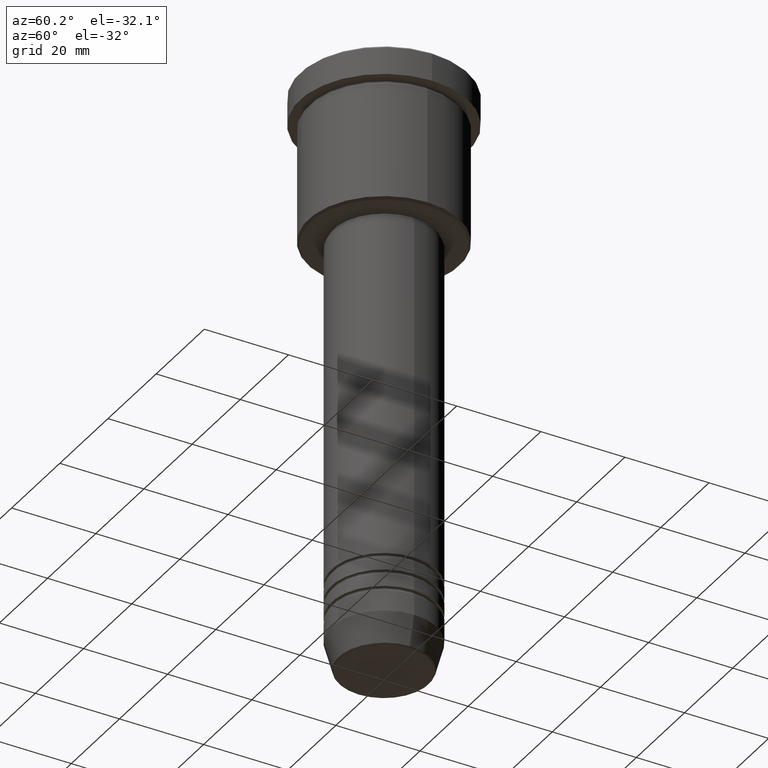
[diagram: clean part render]
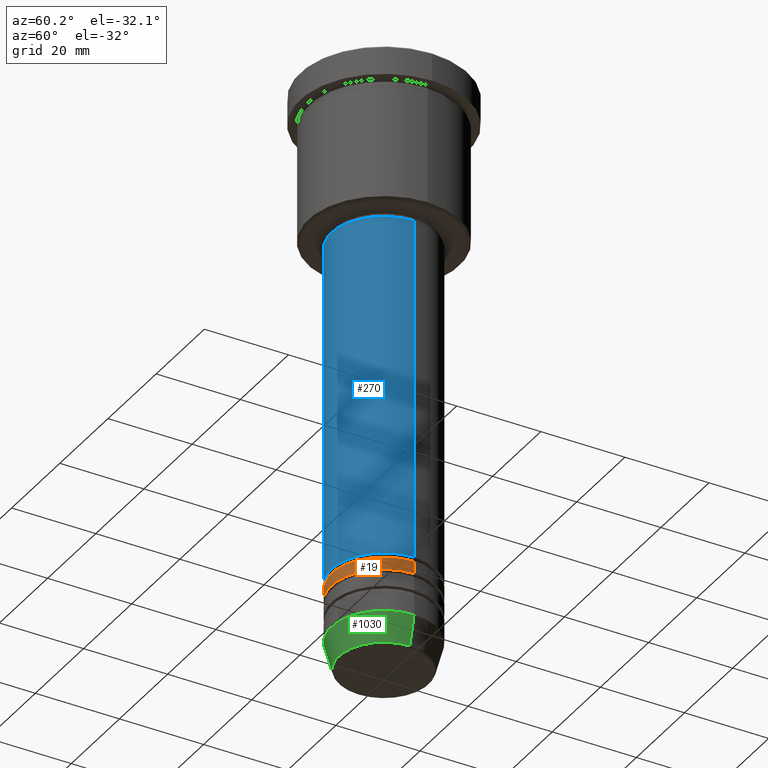
[diagram: same view with three faces highlighted in distinct colors, each labeled with its STEP entity id]
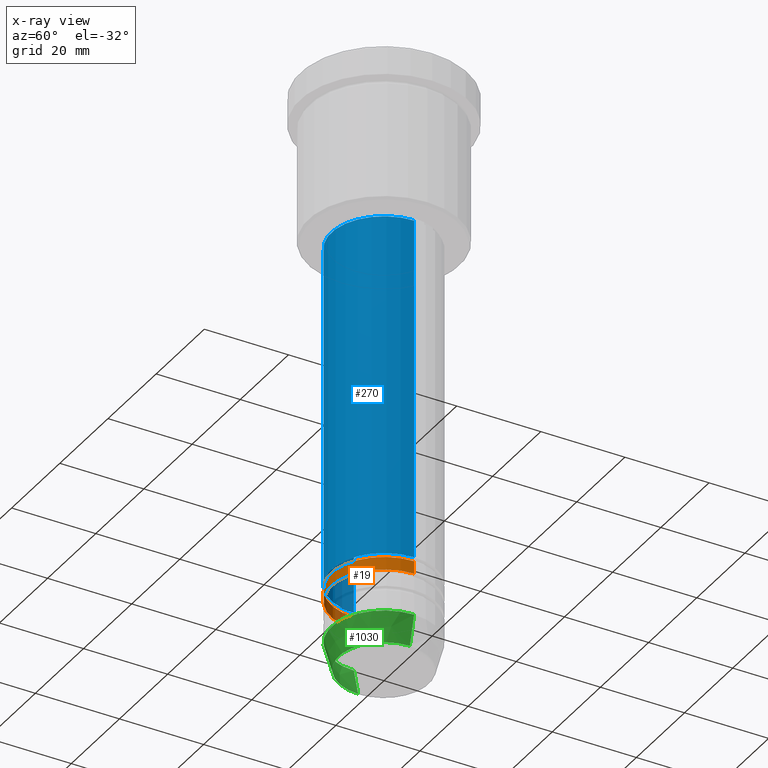
[diagram: x-ray of the same camera — body ghosted, the three highlighted faces saturated]
A machine part, auxiliary view with three faces highlighted in distinct colors.
The next image is the same camera in x-ray (body ghosted, the three faces saturated) — at least one of them is partly hidden behind the body in this view.
Their STEP definitions:

[orange] entity #19 — the highlighted cylindrical surface (partial cylindrical patch) has radius 12.5 mm, axis along (-0, -0, 1).
#19 = ADVANCED_FACE ( 'NONE', ( #937 ), #109, .T. ) ;
#29 = CARTESIAN_POINT ( 'NONE',  ( 12.50000000000000178, 0.000000000000000000, 0.000000000000000000 ) ) ;
#46 = LINE ( 'NONE', #29, #1169 ) ;
#64 = EDGE_CURVE ( 'NONE', #519, #653, #940, .T. ) ;
#94 = DIRECTION ( 'NONE',  ( 1.000000000000000000, 0.000000000000000000, 0.000000000000000000 ) ) ;
#95 = DIRECTION ( 'NONE',  ( 1.000000000000000000, 0.000000000000000000, 0.000000000000000000 ) ) ;
#98 = CARTESIAN_POINT ( 'NONE',  ( -12.50000000000000000, 1.530808498934191719E-15, -120.0000000000000000 ) ) ;
#107 = CARTESIAN_POINT ( 'NONE',  ( 12.50000000000000355, 0.000000000000000000, -123.0000000000000000 ) ) ;
#109 = CYLINDRICAL_SURFACE ( 'NONE', #283, 12.50000000000000178 ) ;
#111 = EDGE_CURVE ( 'NONE', #837, #653, #46, .T. ) ;
#192 = ORIENTED_EDGE ( 'NONE', *, *, #746, .T. ) ;
#197 = CARTESIAN_POINT ( 'NONE',  ( -12.50000000000000533, 1.530808498934192113E-15, -123.0000000000000000 ) ) ;
#208 = AXIS2_PLACEMENT_3D ( 'NONE', #459, #737, #742 ) ;
#283 = AXIS2_PLACEMENT_3D ( 'NONE', #658, #393, #95 ) ;
#385 = DIRECTION ( 'NONE',  ( -0.000000000000000000, -0.000000000000000000, 1.000000000000000000 ) ) ;
#393 = DIRECTION ( 'NONE',  ( -0.000000000000000000, -0.000000000000000000, 1.000000000000000000 ) ) ;
#459 = CARTESIAN_POINT ( 'NONE',  ( 0.000000000000000000, 0.000000000000000000, -120.0000000000000000 ) ) ;
#480 = CARTESIAN_POINT ( 'NONE',  ( 0.000000000000000000, 0.000000000000000000, -123.0000000000000000 ) ) ;
#487 = CARTESIAN_POINT ( 'NONE',  ( -12.50000000000000178, 1.530808498934191719E-15, 0.000000000000000000 ) ) ;
#519 = VERTEX_POINT ( 'NONE', #98 ) ;
#552 = AXIS2_PLACEMENT_3D ( 'NONE', #480, #385, #94 ) ;
#574 = LINE ( 'NONE', #487, #743 ) ;
#606 = CARTESIAN_POINT ( 'NONE',  ( 12.50000000000000000, 0.000000000000000000, -120.0000000000000000 ) ) ;
#653 = VERTEX_POINT ( 'NONE', #606 ) ;
#658 = CARTESIAN_POINT ( 'NONE',  ( 0.000000000000000000, 0.000000000000000000, 0.000000000000000000 ) ) ;
#659 = ORIENTED_EDGE ( 'NONE', *, *, #111, .T. ) ;
#668 = CIRCLE ( 'NONE', #552, 12.50000000000000355 ) ;
#699 = ORIENTED_EDGE ( 'NONE', *, *, #64, .F. ) ;
#737 = DIRECTION ( 'NONE',  ( -0.000000000000000000, -0.000000000000000000, 1.000000000000000000 ) ) ;
#742 = DIRECTION ( 'NONE',  ( 1.000000000000000000, 0.000000000000000000, 0.000000000000000000 ) ) ;
#743 = VECTOR ( 'NONE', #1089, 1000.000000000000000 ) ;
#746 = EDGE_CURVE ( 'NONE', #749, #837, #668, .T. ) ;
#749 = VERTEX_POINT ( 'NONE', #197 ) ;
#784 = DIRECTION ( 'NONE',  ( -0.000000000000000000, -0.000000000000000000, 1.000000000000000000 ) ) ;
#787 = EDGE_CURVE ( 'NONE', #749, #519, #574, .T. ) ;
#837 = VERTEX_POINT ( 'NONE', #107 ) ;
#937 = FACE_OUTER_BOUND ( 'NONE', #1128, .T. ) ;
#940 = CIRCLE ( 'NONE', #208, 12.50000000000000000 ) ;
#1089 = DIRECTION ( 'NONE',  ( -0.000000000000000000, -0.000000000000000000, 1.000000000000000000 ) ) ;
#1128 = EDGE_LOOP ( 'NONE', ( #1162, #192, #659, #699 ) ) ;
#1162 = ORIENTED_EDGE ( 'NONE', *, *, #787, .F. ) ;
#1169 = VECTOR ( 'NONE', #784, 1000.000000000000000 ) ;

[blue] entity #270 — the highlighted cylindrical surface (partial cylindrical patch) has radius 12.5 mm, axis along (-0, -0, 1).
#23 = CARTESIAN_POINT ( 'NONE',  ( 12.50000000000000000, 0.000000000000000000, 0.000000000000000000 ) ) ;
#31 = VECTOR ( 'NONE', #309, 1000.000000000000000 ) ;
#32 = AXIS2_PLACEMENT_3D ( 'NONE', #1143, #165, #1155 ) ;
#68 = DIRECTION ( 'NONE',  ( -0.000000000000000000, -0.000000000000000000, 1.000000000000000000 ) ) ;
#120 = CARTESIAN_POINT ( 'NONE',  ( 12.50000000000000000, 0.000000000000000000, -37.00000000000002842 ) ) ;
#132 = DIRECTION ( 'NONE',  ( -0.000000000000000000, -0.000000000000000000, 1.000000000000000000 ) ) ;
#165 = DIRECTION ( 'NONE',  ( -0.000000000000000000, -0.000000000000000000, 1.000000000000000000 ) ) ;
#167 = EDGE_CURVE ( 'NONE', #691, #365, #221, .T. ) ;
#193 = EDGE_CURVE ( 'NONE', #365, #575, #771, .T. ) ;
#221 = LINE ( 'NONE', #511, #31 ) ;
#261 = CARTESIAN_POINT ( 'NONE',  ( -12.50000000000000000, 1.530808498934191521E-15, -119.0000000000000000 ) ) ;
#270 = ADVANCED_FACE ( 'NONE', ( #1062 ), #516, .T. ) ;
#290 = LINE ( 'NONE', #23, #960 ) ;
#309 = DIRECTION ( 'NONE',  ( -0.000000000000000000, -0.000000000000000000, 1.000000000000000000 ) ) ;
#365 = VERTEX_POINT ( 'NONE', #1160 ) ;
#423 = EDGE_CURVE ( 'NONE', #705, #575, #290, .T. ) ;
#429 = AXIS2_PLACEMENT_3D ( 'NONE', #928, #68, #454 ) ;
#454 = DIRECTION ( 'NONE',  ( 1.000000000000000000, 0.000000000000000000, 0.000000000000000000 ) ) ;
#511 = CARTESIAN_POINT ( 'NONE',  ( -12.50000000000000000, 1.530808498934191521E-15, 0.000000000000000000 ) ) ;
#516 = CYLINDRICAL_SURFACE ( 'NONE', #32, 12.50000000000000000 ) ;
#546 = CARTESIAN_POINT ( 'NONE',  ( 12.50000000000000000, 0.000000000000000000, -119.0000000000000000 ) ) ;
#575 = VERTEX_POINT ( 'NONE', #120 ) ;
#639 = EDGE_LOOP ( 'NONE', ( #1002, #1171, #763, #1075 ) ) ;
#688 = CARTESIAN_POINT ( 'NONE',  ( 0.000000000000000000, 0.000000000000000000, -37.00000000000002842 ) ) ;
#691 = VERTEX_POINT ( 'NONE', #261 ) ;
#705 = VERTEX_POINT ( 'NONE', #546 ) ;
#763 = ORIENTED_EDGE ( 'NONE', *, *, #423, .T. ) ;
#771 = CIRCLE ( 'NONE', #1034, 12.50000000000000000 ) ;
#879 = DIRECTION ( 'NONE',  ( 1.000000000000000000, 0.000000000000000000, 0.000000000000000000 ) ) ;
#928 = CARTESIAN_POINT ( 'NONE',  ( 0.000000000000000000, 0.000000000000000000, -119.0000000000000000 ) ) ;
#931 = DIRECTION ( 'NONE',  ( -0.000000000000000000, -0.000000000000000000, 1.000000000000000000 ) ) ;
#960 = VECTOR ( 'NONE', #931, 1000.000000000000000 ) ;
#968 = CIRCLE ( 'NONE', #429, 12.50000000000000000 ) ;
#1002 = ORIENTED_EDGE ( 'NONE', *, *, #167, .F. ) ;
#1034 = AXIS2_PLACEMENT_3D ( 'NONE', #688, #132, #879 ) ;
#1062 = FACE_OUTER_BOUND ( 'NONE', #639, .T. ) ;
#1075 = ORIENTED_EDGE ( 'NONE', *, *, #193, .F. ) ;
#1090 = EDGE_CURVE ( 'NONE', #691, #705, #968, .T. ) ;
#1143 = CARTESIAN_POINT ( 'NONE',  ( 0.000000000000000000, 0.000000000000000000, 0.000000000000000000 ) ) ;
#1155 = DIRECTION ( 'NONE',  ( 1.000000000000000000, 0.000000000000000000, 0.000000000000000000 ) ) ;
#1160 = CARTESIAN_POINT ( 'NONE',  ( -12.50000000000000000, 1.530808498934191521E-15, -37.00000000000002842 ) ) ;
#1171 = ORIENTED_EDGE ( 'NONE', *, *, #1090, .T. ) ;

[green] entity #1030 — the highlighted conical surface has half-angle 15 deg.
#53 = CARTESIAN_POINT ( 'NONE',  ( -10.72365507213718416, 1.422038742429750121E-15, -139.6294095225512990 ) ) ;
#57 = AXIS2_PLACEMENT_3D ( 'NONE', #1133, #228, #233 ) ;
#194 = CARTESIAN_POINT ( 'NONE',  ( 0.000000000000000000, 0.000000000000000000, -133.0000000000000000 ) ) ;
#228 = DIRECTION ( 'NONE',  ( -0.000000000000000000, -0.000000000000000000, 1.000000000000000000 ) ) ;
#233 = DIRECTION ( 'NONE',  ( 1.000000000000000000, 0.000000000000000000, 0.000000000000000000 ) ) ;
#289 = VERTEX_POINT ( 'NONE', #53 ) ;
#301 = CARTESIAN_POINT ( 'NONE',  ( -12.50000000000000000, 1.530808498934191521E-15, -133.0000000000000000 ) ) ;
#302 = VECTOR ( 'NONE', #414, 1000.000000000000000 ) ;
#331 = CIRCLE ( 'NONE', #57, 12.50000000000000000 ) ;
#333 = ORIENTED_EDGE ( 'NONE', *, *, #617, .T. ) ;
#360 = CARTESIAN_POINT ( 'NONE',  ( -12.50000000000000000, 1.530808498934191521E-15, -133.0000000000000000 ) ) ;
#379 = AXIS2_PLACEMENT_3D ( 'NONE', #610, #425, #443 ) ;
#399 = VERTEX_POINT ( 'NONE', #979 ) ;
#414 = DIRECTION ( 'NONE',  ( 0.2588190451025213501, 0.000000000000000000, 0.9659258262890680902 ) ) ;
#425 = DIRECTION ( 'NONE',  ( -0.000000000000000000, -0.000000000000000000, 1.000000000000000000 ) ) ;
#443 = DIRECTION ( 'NONE',  ( 1.000000000000000000, 0.000000000000000000, 0.000000000000000000 ) ) ;
#468 = ORIENTED_EDGE ( 'NONE', *, *, #998, .T. ) ;
#476 = CARTESIAN_POINT ( 'NONE',  ( 12.50000000000000000, 0.000000000000000000, -133.0000000000000000 ) ) ;
#492 = DIRECTION ( 'NONE',  ( -0.2588190451025213501, 3.169619151431772337E-17, 0.9659258262890680902 ) ) ;
#573 = EDGE_CURVE ( 'NONE', #289, #847, #950, .T. ) ;
#602 = CIRCLE ( 'NONE', #379, 10.72365507213718416 ) ;
#610 = CARTESIAN_POINT ( 'NONE',  ( 0.000000000000000000, 0.000000000000000000, -139.6294095225512990 ) ) ;
#617 = EDGE_CURVE ( 'NONE', #289, #852, #602, .T. ) ;
#662 = DIRECTION ( 'NONE',  ( -0.000000000000000000, -0.000000000000000000, 1.000000000000000000 ) ) ;
#669 = CONICAL_SURFACE ( 'NONE', #1120, 12.50000000000000000, 0.2617993877991500740 ) ;
#730 = CARTESIAN_POINT ( 'NONE',  ( 10.72365507213718416, 0.000000000000000000, -139.6294095225512990 ) ) ;
#759 = DIRECTION ( 'NONE',  ( 1.000000000000000000, 0.000000000000000000, 0.000000000000000000 ) ) ;
#770 = LINE ( 'NONE', #476, #302 ) ;
#812 = ORIENTED_EDGE ( 'NONE', *, *, #963, .F. ) ;
#847 = VERTEX_POINT ( 'NONE', #360 ) ;
#852 = VERTEX_POINT ( 'NONE', #730 ) ;
#950 = LINE ( 'NONE', #301, #1149 ) ;
#958 = FACE_OUTER_BOUND ( 'NONE', #1118, .T. ) ;
#962 = ORIENTED_EDGE ( 'NONE', *, *, #573, .F. ) ;
#963 = EDGE_CURVE ( 'NONE', #847, #399, #331, .T. ) ;
#979 = CARTESIAN_POINT ( 'NONE',  ( 12.50000000000000000, 0.000000000000000000, -133.0000000000000000 ) ) ;
#998 = EDGE_CURVE ( 'NONE', #852, #399, #770, .T. ) ;
#1030 = ADVANCED_FACE ( 'NONE', ( #958 ), #669, .T. ) ;
#1118 = EDGE_LOOP ( 'NONE', ( #962, #333, #468, #812 ) ) ;
#1120 = AXIS2_PLACEMENT_3D ( 'NONE', #194, #662, #759 ) ;
#1133 = CARTESIAN_POINT ( 'NONE',  ( 0.000000000000000000, 0.000000000000000000, -133.0000000000000000 ) ) ;
#1149 = VECTOR ( 'NONE', #492, 1000.000000000000000 ) ;